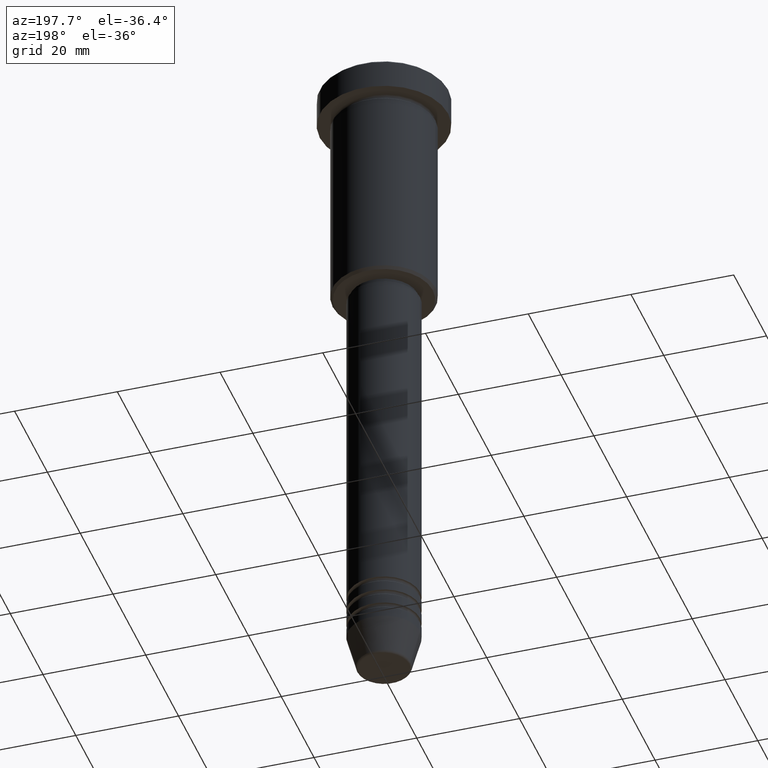
[diagram: clean part render]
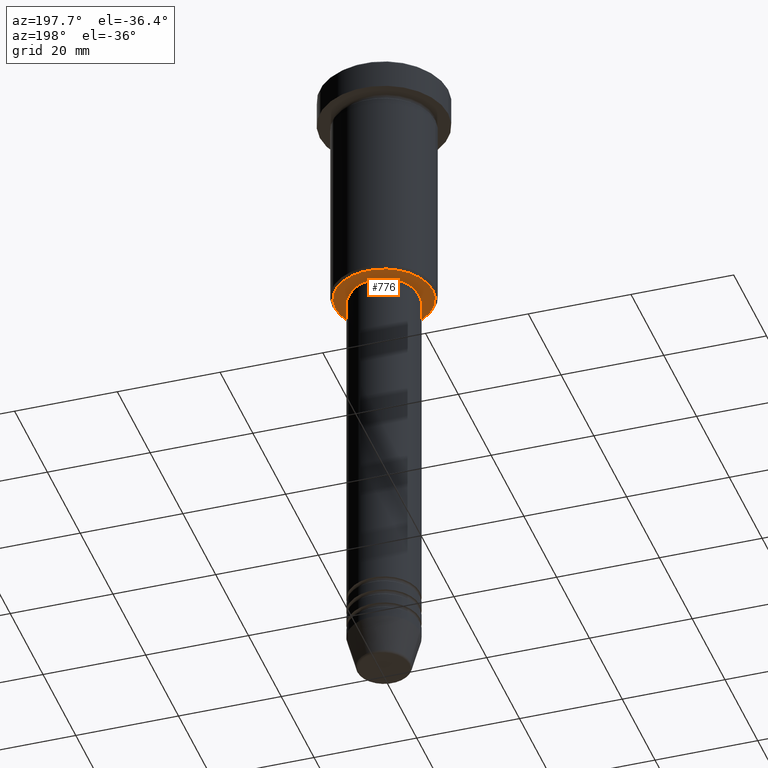
[diagram: same view with one face highlighted and labeled with its STEP entity id]
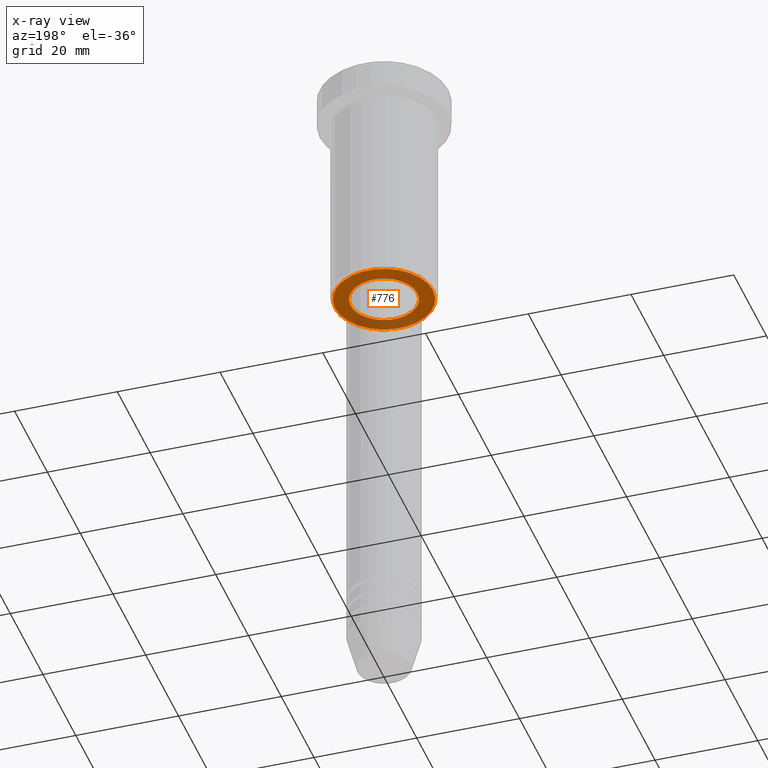
[diagram: x-ray of the same camera — body ghosted, the highlighted face saturated]
A machine part, auxiliary view. The second image highlights one B-rep face of the part: STEP entity #776.
The next image is the same camera in x-ray: the body ghosted, the highlighted face saturated — about 21% of this face is hidden behind the body in this view.
In plain terms, the highlighted planar face has unit normal (0, 0, -1).
Its self-contained STEP definition (entity closure, byte-faithful):
#19 = DIRECTION ( 'NONE',  ( 1.000000000000000000, 0.000000000000000000, 0.000000000000000000 ) ) ;
#70 = EDGE_LOOP ( 'NONE', ( #179, #332 ) ) ;
#168 = EDGE_CURVE ( 'NONE', #172, #1019, #872, .T. ) ;
#172 = VERTEX_POINT ( 'NONE', #921 ) ;
#179 = ORIENTED_EDGE ( 'NONE', *, *, #168, .T. ) ;
#193 = AXIS2_PLACEMENT_3D ( 'NONE', #492, #780, #579 ) ;
#324 = EDGE_LOOP ( 'NONE', ( #847, #611 ) ) ;
#332 = ORIENTED_EDGE ( 'NONE', *, *, #694, .T. ) ;
#377 = VERTEX_POINT ( 'NONE', #739 ) ;
#461 = DIRECTION ( 'NONE',  ( 0.000000000000000000, 0.000000000000000000, -1.000000000000000000 ) ) ;
#486 = DIRECTION ( 'NONE',  ( -1.000000000000000000, 0.000000000000000000, 0.000000000000000000 ) ) ;
#492 = CARTESIAN_POINT ( 'NONE',  ( 0.000000000000000000, 0.000000000000000000, -45.99999999999998579 ) ) ;
#535 = FACE_OUTER_BOUND ( 'NONE', #70, .T. ) ;
#568 = CIRCLE ( 'NONE', #193, 6.500000000000000000 ) ;
#579 = DIRECTION ( 'NONE',  ( 1.000000000000000000, 0.000000000000000000, 0.000000000000000000 ) ) ;
#584 = AXIS2_PLACEMENT_3D ( 'NONE', #668, #808, #713 ) ;
#593 = CARTESIAN_POINT ( 'NONE',  ( -6.500000000000000000, 7.960204194457795477E-16, -45.99999999999998579 ) ) ;
#605 = VERTEX_POINT ( 'NONE', #593 ) ;
#611 = ORIENTED_EDGE ( 'NONE', *, *, #712, .T. ) ;
#640 = DIRECTION ( 'NONE',  ( -1.000000000000000000, 0.000000000000000000, -0.000000000000000000 ) ) ;
#668 = CARTESIAN_POINT ( 'NONE',  ( 0.000000000000000000, 0.000000000000000000, -45.99999999999998579 ) ) ;
#694 = EDGE_CURVE ( 'NONE', #1019, #172, #1140, .T. ) ;
#712 = EDGE_CURVE ( 'NONE', #605, #377, #1006, .T. ) ;
#713 = DIRECTION ( 'NONE',  ( -1.000000000000000000, 0.000000000000000000, 0.000000000000000000 ) ) ;
#721 = FACE_BOUND ( 'NONE', #324, .T. ) ;
#730 = CARTESIAN_POINT ( 'NONE',  ( 0.000000000000000000, 10.00000000000000000, -45.99999999999998579 ) ) ;
#739 = CARTESIAN_POINT ( 'NONE',  ( 6.500000000000000000, 0.000000000000000000, -45.99999999999998579 ) ) ;
#757 = DIRECTION ( 'NONE',  ( -0.000000000000000000, -0.000000000000000000, 1.000000000000000000 ) ) ;
#760 = CARTESIAN_POINT ( 'NONE',  ( 0.000000000000000000, 0.000000000000000000, -45.99999999999998579 ) ) ;
#776 = ADVANCED_FACE ( 'NONE', ( #535, #721 ), #925, .T. ) ;
#780 = DIRECTION ( 'NONE',  ( -0.000000000000000000, -0.000000000000000000, 1.000000000000000000 ) ) ;
#804 = AXIS2_PLACEMENT_3D ( 'NONE', #844, #757, #19 ) ;
#808 = DIRECTION ( 'NONE',  ( 0.000000000000000000, 0.000000000000000000, -1.000000000000000000 ) ) ;
#823 = AXIS2_PLACEMENT_3D ( 'NONE', #730, #461, #640 ) ;
#832 = EDGE_CURVE ( 'NONE', #377, #605, #568, .T. ) ;
#844 = CARTESIAN_POINT ( 'NONE',  ( 0.000000000000000000, 0.000000000000000000, -45.99999999999998579 ) ) ;
#847 = ORIENTED_EDGE ( 'NONE', *, *, #832, .T. ) ;
#872 = CIRCLE ( 'NONE', #891, 9.500000000000008882 ) ;
#891 = AXIS2_PLACEMENT_3D ( 'NONE', #760, #942, #486 ) ;
#921 = CARTESIAN_POINT ( 'NONE',  ( 9.500000000000008882, 0.000000000000000000, -45.99999999999998579 ) ) ;
#925 = PLANE ( 'NONE',  #823 ) ;
#942 = DIRECTION ( 'NONE',  ( 0.000000000000000000, 0.000000000000000000, -1.000000000000000000 ) ) ;
#1006 = CIRCLE ( 'NONE', #804, 6.500000000000000000 ) ;
#1019 = VERTEX_POINT ( 'NONE', #1054 ) ;
#1054 = CARTESIAN_POINT ( 'NONE',  ( -9.500000000000008882, 1.194030629168669864E-15, -45.99999999999998579 ) ) ;
#1140 = CIRCLE ( 'NONE', #584, 9.500000000000008882 ) ;